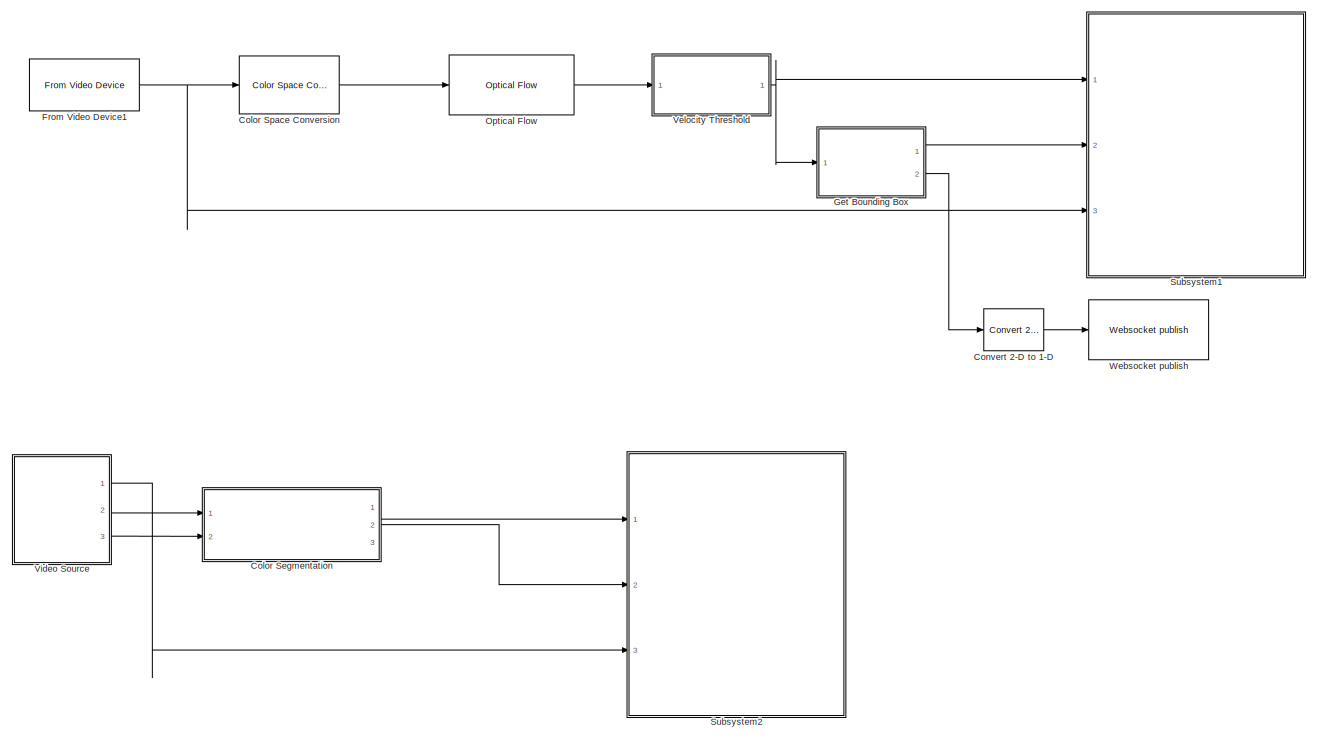
[diagram: root canvas - part 1/2, most of the canvas]
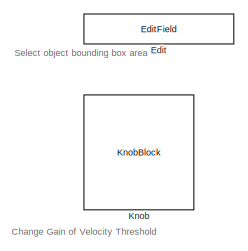
[diagram: root canvas - part 2/2, top left region]
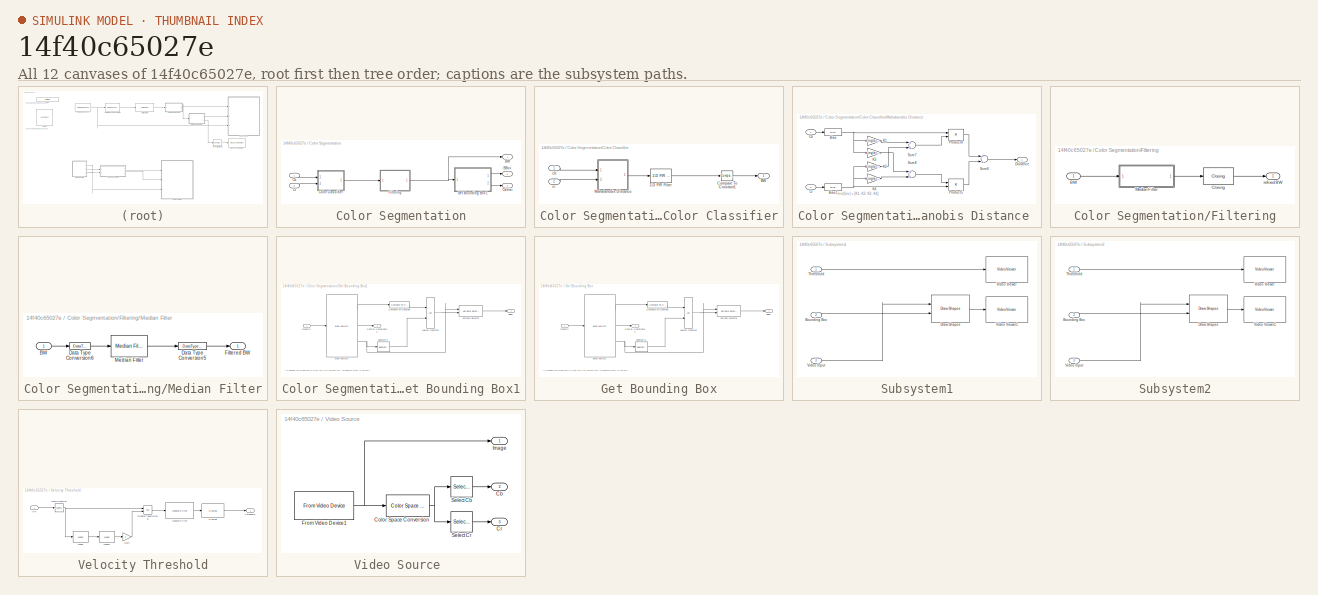
[diagram: thumbnail index - all 12 canvases of the model, root first then tree order]
MODEL slx_14f40c65027e
KIND model
CONFIG AbsTol = auto
CONFIG EnableMultiTasking = off
CONFIG FixedStep = auto
CONFIG MaxStep = auto
CONFIG MinStep = auto
CONFIG RelTol = 1e-3
CONFIG SampleTimeConstraint = Unconstrained
CONFIG Solver = VariableStepAuto
CONFIG SolverName = VariableStepAuto
CONFIG StartTime = 0.0
CONFIG StopTime = inf
BLOCK [SubSystem] Color Segmentation
  Ports = [2, 3]
  RequestExecContextInheritance = off
BLOCK [Outport] Color Segmentation/BBox
  IconDisplay = Port number
  Port = 2
BLOCK [Outport] Color Segmentation/BW
  IconDisplay = Port number
BLOCK [Inport] Color Segmentation/Cb
  IconDisplay = Port number
BLOCK [Outport] Color Segmentation/Center
  IconDisplay = Port number
  Port = 3
BLOCK [SubSystem] Color Segmentation/Color Classifier
  Ports = [2, 1]
  RequestExecContextInheritance = off
BLOCK [Reference] Color Segmentation/Color Classifier/2-D FIR Filter  REF=visionfilter/2-D FIR Filter
  Ports = [1, 1]
  SourceBlock = visionfilter/2-D FIR Filter
  SourceProductBaseCode = VP
  SourceProductName = Computer Vision Toolbox
  SourceType = 2-D FIR Filter
BLOCK [Outport] Color Segmentation/Color Classifier/BW
  IconDisplay = Port number
BLOCK [Reference] Color Segmentation/Color Classifier/Compare To Constant1  REF=simulink/Logic and Bit
Operations/Compare
To Constant
  Ports = [1, 1]
  SourceBlock = simulink/Logic and Bit\nOperations/Compare\nTo Constant
  SourceProductBaseCode = SL
  SourceProductName = Simulink
  SourceType = Compare To Constant
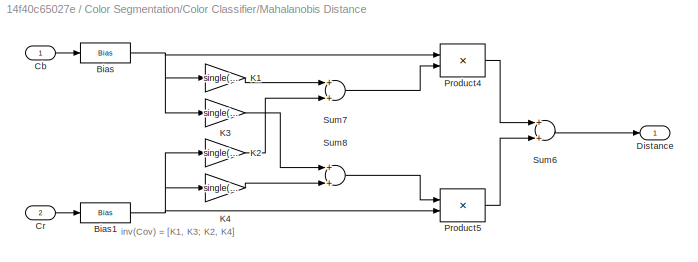
BLOCK [SubSystem] Color Segmentation/Color Classifier/Mahalanobis Distance 
  Ports = [2, 1]
  RequestExecContextInheritance = off
BLOCK [Bias] Color Segmentation/Color Classifier/Mahalanobis Distance /Bias
  Bias = -single(107.9649/255)
  SaturateOnIntegerOverflow = off
BLOCK [Bias] Color Segmentation/Color Classifier/Mahalanobis Distance /Bias1
  Bias = -single(140.8913/255)
  SaturateOnIntegerOverflow = off
BLOCK [Inport] Color Segmentation/Color Classifier/Mahalanobis Distance /Cb
  IconDisplay = Port number
BLOCK [Inport] Color Segmentation/Color Classifier/Mahalanobis Distance /Cr
  IconDisplay = Port number
  Port = 2
BLOCK [Outport] Color Segmentation/Color Classifier/Mahalanobis Distance /Distance
  IconDisplay = Port number
BLOCK [Gain] Color Segmentation/Color Classifier/Mahalanobis Distance /K1
  Gain = single(1.8328501e+03)
BLOCK [Gain] Color Segmentation/Color Classifier/Mahalanobis Distance /K2
  Gain = single(2.2506719e+03)
BLOCK [Gain] Color Segmentation/Color Classifier/Mahalanobis Distance /K3
  Gain = single(2.2506719e+03)
BLOCK [Gain] Color Segmentation/Color Classifier/Mahalanobis Distance /K4
  Gain = single(6.8658257e+03)
BLOCK [Product] Color Segmentation/Color Classifier/Mahalanobis Distance /Product4
  Ports = [2, 1]
  RndMeth = Floor
BLOCK [Product] Color Segmentation/Color Classifier/Mahalanobis Distance /Product5
  Ports = [2, 1]
  RndMeth = Floor
BLOCK [Sum] Color Segmentation/Color Classifier/Mahalanobis Distance /Sum6
  Ports = [2, 1]
BLOCK [Sum] Color Segmentation/Color Classifier/Mahalanobis Distance /Sum7
  Ports = [2, 1]
BLOCK [Sum] Color Segmentation/Color Classifier/Mahalanobis Distance /Sum8
  Ports = [2, 1]
BLOCK [Inport] Color Segmentation/Color Classifier/cb
  IconDisplay = Port number
BLOCK [Inport] Color Segmentation/Color Classifier/cr
  IconDisplay = Port number
  Port = 2
BLOCK [Inport] Color Segmentation/Cr
  IconDisplay = Port number
  Port = 2
BLOCK [SubSystem] Color Segmentation/Filtering
  Ports = [1, 1]
  RequestExecContextInheritance = off
BLOCK [Inport] Color Segmentation/Filtering/BW
  IconDisplay = Port number
BLOCK [Reference] Color Segmentation/Filtering/Closing  REF=visionmorphops/Closing
  Ports = [1, 1]
  SourceBlock = visionmorphops/Closing
  SourceProductBaseCode = VP
  SourceProductName = Computer Vision Toolbox
  SourceType = Closing
BLOCK [SubSystem] Color Segmentation/Filtering/Median Filter
  Ports = [1, 1]
  RequestExecContextInheritance = off
BLOCK [Inport] Color Segmentation/Filtering/Median Filter/BW
  IconDisplay = Port number
BLOCK [DataTypeConversion] Color Segmentation/Filtering/Median Filter/Data Type Conversion5
  OutDataTypeStr = boolean
BLOCK [DataTypeConversion] Color Segmentation/Filtering/Median Filter/Data Type Conversion6
  OutDataTypeStr = single
BLOCK [Outport] Color Segmentation/Filtering/Median Filter/Filtered BW
  IconDisplay = Port number
BLOCK [Reference] Color Segmentation/Filtering/Median Filter/Median Filter  REF=visionanalysis/Median Filter
  Ports = [1, 1]
  SourceBlock = visionanalysis/Median Filter
  SourceProductBaseCode = VP
  SourceProductName = Computer Vision Toolbox
  SourceType = Median Filter
BLOCK [Outport] Color Segmentation/Filtering/refined BW
  IconDisplay = Port number
BLOCK [SubSystem] Color Segmentation/Get Bounding Box1
  Ports = [1, 2]
  RequestExecContextInheritance = off
BLOCK [Outport] Color Segmentation/Get Bounding Box1/BBox
  IconDisplay = Port number
BLOCK [Reference] Color Segmentation/Get Bounding Box1/Blob Analysis  REF=visionstatistics/Blob Analysis
  Ports = [1, 3]
  SourceBlock = visionstatistics/Blob Analysis
  SourceProductBaseCode = VP
  SourceProductName = Computer Vision Toolbox
  SourceType = Blob Analysis
  Tag = vipblks_row_conv
BLOCK [Outport] Color Segmentation/Get Bounding Box1/Central Coordinates
  IconDisplay = Port number
  Port = 2
BLOCK [Reference] Color Segmentation/Get Bounding Box1/Compare To Constant  REF=simulink/Logic and Bit
Operations/Compare
To Constant
  Ports = [1, 1]
  SourceBlock = simulink/Logic and Bit\nOperations/Compare\nTo Constant
  SourceProductBaseCode = SL
  SourceProductName = Simulink
  SourceType = Compare To Constant
BLOCK [Inport] Color Segmentation/Get Bounding Box1/Intensity
  IconDisplay = Port number
BLOCK [Logic] Color Segmentation/Get Bounding Box1/Logical Operator
  AllPortsSameDT = off
  OutDataTypeStr = boolean
  Ports = [2, 1]
BLOCK [Reference] Color Segmentation/Get Bounding Box1/Submatrix  REF=dspmtrx3/Submatrix
  Ports = [1, 1]
  SourceBlock = dspmtrx3/Submatrix
  SourceProductBaseCode = DS
  SourceProductName = DSP System Toolbox
  SourceType = Submatrix
BLOCK [Reference] Color Segmentation/Get Bounding Box1/Variable Selector  REF=dspindex/Variable
Selector
  Ports = [2, 1]
  SourceBlock = dspindex/Variable\nSelector
  SourceProductBaseCode = DS
  SourceProductName = DSP System Toolbox
  SourceType = Variable Selector
BLOCK [Reference] Color Space Conversion  REF=visionconversions/Color Space
 Conversion
  Commented = on
  Ports = [1, 1]
  SourceBlock = visionconversions/Color Space\n Conversion
  SourceProductBaseCode = VP
  SourceProductName = Computer Vision Toolbox
  SourceType = Color Space Conversion
BLOCK [Reference] Convert 2-D to 1-D  REF=dspsigattribs/Convert 2-D to 1-D
  Commented = on
  Ports = [1, 1]
  SourceBlock = dspsigattribs/Convert 2-D to 1-D
  SourceProductBaseCode = DS
  SourceProductName = DSP System Toolbox
  SourceType = Convert 2-D to 1-D
BLOCK [EditField] Edit
  Alignment = Center
  Commented = on
  LabelPosition = Bottom
  ShowInitialText = on
BLOCK [Reference] From Video Device1  REF=imaqlib/From Video Device
  Commented = on
  Ports = [0, 1]
  SourceBlock = imaqlib/From Video Device
  SourceProductBaseCode = IA
  SourceProductName = Image Acquisition Toolbox
  SourceType = From Video Device
  UserDataPersistent = on
BLOCK [SubSystem] Get Bounding Box
  Commented = on
  Ports = [1, 2]
  RequestExecContextInheritance = off
BLOCK [Outport] Get Bounding Box/BBox
  IconDisplay = Port number
BLOCK [Reference] Get Bounding Box/Blob Analysis  REF=visionstatistics/Blob Analysis
  Ports = [1, 3]
  SourceBlock = visionstatistics/Blob Analysis
  SourceProductBaseCode = VP
  SourceProductName = Computer Vision Toolbox
  SourceType = Blob Analysis
  Tag = vipblks_row_conv
BLOCK [Outport] Get Bounding Box/Central Coordinates
  IconDisplay = Port number
  Port = 2
BLOCK [Reference] Get Bounding Box/Compare To Constant  REF=simulink/Logic and Bit
Operations/Compare
To Constant
  Ports = [1, 1]
  SourceBlock = simulink/Logic and Bit\nOperations/Compare\nTo Constant
  SourceProductBaseCode = SL
  SourceProductName = Simulink
  SourceType = Compare To Constant
BLOCK [Inport] Get Bounding Box/Intensity
  IconDisplay = Port number
BLOCK [Logic] Get Bounding Box/Logical Operator
  AllPortsSameDT = off
  OutDataTypeStr = boolean
  Ports = [2, 1]
BLOCK [Reference] Get Bounding Box/Submatrix  REF=dspmtrx3/Submatrix
  Ports = [1, 1]
  SourceBlock = dspmtrx3/Submatrix
  SourceProductBaseCode = DS
  SourceProductName = DSP System Toolbox
  SourceType = Submatrix
BLOCK [Reference] Get Bounding Box/Variable Selector  REF=dspindex/Variable
Selector
  Ports = [2, 1]
  SourceBlock = dspindex/Variable\nSelector
  SourceProductBaseCode = DS
  SourceProductName = DSP System Toolbox
  SourceType = Variable Selector
BLOCK [KnobBlock] Knob
  Commented = on
  ScaleMax = 10
  ScaleMin = 1
BLOCK [Reference] Optical Flow  REF=visionanalysis/Optical Flow
  Commented = on
  Ports = [1, 1]
  SourceBlock = visionanalysis/Optical Flow
  SourceProductBaseCode = VP
  SourceProductName = Computer Vision Toolbox
  SourceType = Optical Flow
BLOCK [SubSystem] Subsystem1
  Commented = on
  Ports = [3]
  RequestExecContextInheritance = off
BLOCK [Inport] Subsystem1/Bounding Box
  IconDisplay = Port number
  Port = 2
BLOCK [Reference] Subsystem1/Draw Shapes  REF=visiontextngfix/Draw Shapes
  Ports = [2, 1]
  SourceBlock = visiontextngfix/Draw Shapes
  SourceProductBaseCode = VP
  SourceProductName = Computer Vision Toolbox
  SourceType = Draw Shapes
BLOCK [Inport] Subsystem1/Threshold
  IconDisplay = Port number
BLOCK [Inport] Subsystem1/Video Input
  IconDisplay = Port number
  Port = 3
BLOCK [VideoViewer] Subsystem1/Video Viewer
  FigPos = [962 1037 958 409]
  Ports = [1]
  ScopeSpecificationString = vipscopes.VideoViewerScopeCfg('CurrentConfiguration', extmgr.ConfigurationSet(extmgr.Configuration('Core','General UI',true),extmgr.Configuration('Core','Source UI',true),extmgr.Configuration('Sources','WiredSimulink',true),extmgr.Configuration('Visuals','Video',true),extmgr.Configuration('Tools','Image Navigation Tools',true),extmgr.Configuration('Tools','Image Tool',true),extmgr.Configuration('T...<+74ch>
BLOCK [VideoViewer] Subsystem1/Video Viewer1
  FigPos = [2 517 958 409]
  Ports = [1]
  ScopeSpecificationString = vipscopes.VideoViewerScopeCfg('CurrentConfiguration', extmgr.ConfigurationSet(extmgr.Configuration('Core','General UI',true),extmgr.Configuration('Core','Source UI',true),extmgr.Configuration('Sources','WiredSimulink',true),extmgr.Configuration('Visuals','Video',true),extmgr.Configuration('Tools','Image Navigation Tools',true),extmgr.Configuration('Tools','Image Tool',true),extmgr.Configuration('T...<+73ch>
BLOCK [SubSystem] Subsystem2
  Ports = [3]
  RequestExecContextInheritance = off
BLOCK [Inport] Subsystem2/Bounding Box
  IconDisplay = Port number
  Port = 2
BLOCK [Reference] Subsystem2/Draw Shapes  REF=visiontextngfix/Draw Shapes
  Ports = [2, 1]
  SourceBlock = visiontextngfix/Draw Shapes
  SourceProductBaseCode = VP
  SourceProductName = Computer Vision Toolbox
  SourceType = Draw Shapes
BLOCK [Inport] Subsystem2/Threshold
  IconDisplay = Port number
BLOCK [Inport] Subsystem2/Video Input
  IconDisplay = Port number
  Port = 3
BLOCK [VideoViewer] Subsystem2/Video Viewer
  FigPos = [911 981 963 699]
  Ports = [1]
  ScopeSpecificationString = vipscopes.VideoViewerScopeCfg('CurrentConfiguration', extmgr.ConfigurationSet(extmgr.Configuration('Core','General UI',true),extmgr.Configuration('Core','Source UI',true),extmgr.Configuration('Sources','WiredSimulink',true),extmgr.Configuration('Visuals','Video',true),extmgr.Configuration('Tools','Image Navigation Tools',true),extmgr.Configuration('Tools','Image Tool',true),extmgr.Configuration('T...<+74ch>
BLOCK [VideoViewer] Subsystem2/Video Viewer1
  FigPos = [2 936 949 828]
  Ports = [1]
  ScopeSpecificationString = vipscopes.VideoViewerScopeCfg('CurrentConfiguration', extmgr.ConfigurationSet(extmgr.Configuration('Core','General UI',true),extmgr.Configuration('Core','Source UI',true),extmgr.Configuration('Sources','WiredSimulink',true),extmgr.Configuration('Visuals','Video',true),extmgr.Configuration('Tools','Image Navigation Tools',true),extmgr.Configuration('Tools','Image Tool',true),extmgr.Configuration('T...<+73ch>
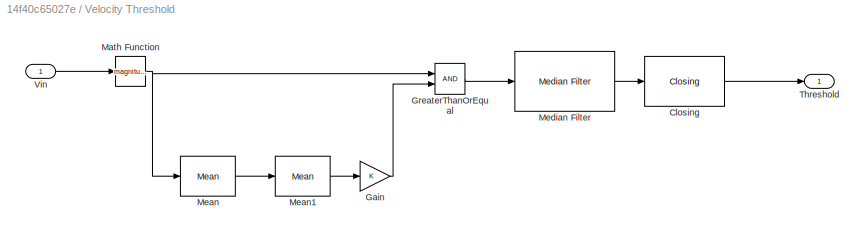
BLOCK [SubSystem] Velocity Threshold
  Commented = on
  Ports = [1, 1]
  RequestExecContextInheritance = off
BLOCK [Reference] Velocity Threshold/Closing  REF=visionmorphops/Closing
  Ports = [1, 1]
  SourceBlock = visionmorphops/Closing
  SourceProductBaseCode = VP
  SourceProductName = Computer Vision Toolbox
  SourceType = Closing
BLOCK [Gain] Velocity Threshold/Gain
  OutDataTypeStr = Inherit: Inherit via internal rule
  ParamDataTypeStr = Inherit: Inherit via internal rule
  SaturateOnIntegerOverflow = off
BLOCK [RelationalOperator] Velocity Threshold/GreaterThanOrEqual
  InputSameDT = off
  OutDataTypeStr = boolean
  Ports = [2, 1]
  RndMeth = Simplest
BLOCK [Math] Velocity Threshold/Math Function
  Operator = magnitude^2
  Ports = [1, 1]
  SignedPower = off
BLOCK [Reference] Velocity Threshold/Mean  REF=dspstat3/Mean
  Ports = [1, 1]
  SourceBlock = dspstat3/Mean
  SourceProductBaseCode = DS
  SourceProductName = DSP System Toolbox
  SourceType = Mean
  UserDataPersistent = on
BLOCK [Reference] Velocity Threshold/Mean1  REF=dspstat3/Mean
  Ports = [1, 1]
  SourceBlock = dspstat3/Mean
  SourceProductBaseCode = DS
  SourceProductName = DSP System Toolbox
  SourceType = Mean
  UserDataPersistent = on
BLOCK [Reference] Velocity Threshold/Median Filter  REF=visionanalysis/Median Filter
  Ports = [1, 1]
  SourceBlock = visionanalysis/Median Filter
  SourceProductBaseCode = VP
  SourceProductName = Computer Vision Toolbox
  SourceType = Median Filter
BLOCK [Outport] Velocity Threshold/Threshold
  IconDisplay = Port number
BLOCK [Inport] Velocity Threshold/Vin
  IconDisplay = Port number
BLOCK [SubSystem] Video Source 
  Ports = [0, 3]
  RequestExecContextInheritance = off
BLOCK [Outport] Video Source /Cb
  IconDisplay = Port number
  Port = 2
BLOCK [Reference] Video Source /Color Space Conversion  REF=visionconversions/Color Space
 Conversion
  Ports = [1, 1]
  SourceBlock = visionconversions/Color Space\n Conversion
  SourceProductBaseCode = VP
  SourceProductName = Computer Vision Toolbox
  SourceType = Color Space Conversion
BLOCK [Outport] Video Source /Cr
  IconDisplay = Port number
  Port = 3
BLOCK [Reference] Video Source /From Video Device1  REF=imaqlib/From Video Device
  Ports = [0, 1]
  SourceBlock = imaqlib/From Video Device
  SourceProductBaseCode = IA
  SourceProductName = Image Acquisition Toolbox
  SourceType = From Video Device
  UserDataPersistent = on
BLOCK [Outport] Video Source /Image
  IconDisplay = Port number
BLOCK [Selector] Video Source /Select Cb
  IndexOptions = Select all,Select all,Index vector (dialog)
  Indices = [1 3],1,2
  InputPortWidth = 3
  NumberOfDimensions = 3
  OutputSizes = 1,1,1
  Ports = [1, 1]
BLOCK [Selector] Video Source /Select Cr
  IndexOptions = Select all,Select all,Index vector (dialog)
  Indices = [1 3],1,3
  InputPortWidth = 3
  NumberOfDimensions = 3
  OutputSizes = 1,1,1
  Ports = [1, 1]
BLOCK [Reference] Websocket publish  REF=raspberrypilib/Websocket publish
  Commented = on
  Ports = [1]
  SourceBlock = raspberrypilib/Websocket publish
  SourceProductBaseCode = RASPPI
  SourceProductName = Simulink Support Package for Raspberry Pi Hardware
  SourceType = codertarget.raspi.internal.webPublish
ANNOTATION (root): Change Gain of Velocity Threshold
ANNOTATION (root): Select object bounding box area
ANNOTATION Color Segmentation/Color Classifier/Mahalanobis Distance : inv(Cov) = [K1, K3; K2, K4]
ANNOTATION Color Segmentation/Get Bounding Box1: //Changed the SUBMATRIX to be the first column only (Research what is correct) ---> Default is all columns (50x4)//
ANNOTATION Get Bounding Box: //Changed the SUBMATRIX to be the first column only (Research what is correct) ---> Default is all columns (50x4)//
LINE Color Segmentation/Cb:1 -> Color Segmentation/Color Classifier:1
LINE Color Segmentation/Color Classifier/2-D FIR Filter:1 -> Color Segmentation/Color Classifier/Compare To Constant1:1
LINE Color Segmentation/Color Classifier/Compare To Constant1:1 -> Color Segmentation/Color Classifier/BW:1
NET Color Segmentation/Color Classifier/Mahalanobis Distance /Bias1:1 -> Color Segmentation/Color Classifier/Mahalanobis Distance /K2:1, Color Segmentation/Color Classifier/Mahalanobis Distance /K4:1, Color Segmentation/Color Classifier/Mahalanobis Distance /Product5:2
NET Color Segmentation/Color Classifier/Mahalanobis Distance /Bias:1 -> Color Segmentation/Color Classifier/Mahalanobis Distance /K1:1, Color Segmentation/Color Classifier/Mahalanobis Distance /K3:1, Color Segmentation/Color Classifier/Mahalanobis Distance /Product4:1
LINE Color Segmentation/Color Classifier/Mahalanobis Distance /Cb:1 -> Color Segmentation/Color Classifier/Mahalanobis Distance /Bias:1
LINE Color Segmentation/Color Classifier/Mahalanobis Distance /Cr:1 -> Color Segmentation/Color Classifier/Mahalanobis Distance /Bias1:1
LINE Color Segmentation/Color Classifier/Mahalanobis Distance /K1:1 -> Color Segmentation/Color Classifier/Mahalanobis Distance /Sum7:1
LINE Color Segmentation/Color Classifier/Mahalanobis Distance /K2:1 -> Color Segmentation/Color Classifier/Mahalanobis Distance /Sum7:2
LINE Color Segmentation/Color Classifier/Mahalanobis Distance /K3:1 -> Color Segmentation/Color Classifier/Mahalanobis Distance /Sum8:1
LINE Color Segmentation/Color Classifier/Mahalanobis Distance /K4:1 -> Color Segmentation/Color Classifier/Mahalanobis Distance /Sum8:2
LINE Color Segmentation/Color Classifier/Mahalanobis Distance /Product4:1 -> Color Segmentation/Color Classifier/Mahalanobis Distance /Sum6:1
LINE Color Segmentation/Color Classifier/Mahalanobis Distance /Product5:1 -> Color Segmentation/Color Classifier/Mahalanobis Distance /Sum6:2
LINE Color Segmentation/Color Classifier/Mahalanobis Distance /Sum6:1 -> Color Segmentation/Color Classifier/Mahalanobis Distance /Distance:1
LINE Color Segmentation/Color Classifier/Mahalanobis Distance /Sum7:1 -> Color Segmentation/Color Classifier/Mahalanobis Distance /Product4:2
LINE Color Segmentation/Color Classifier/Mahalanobis Distance /Sum8:1 -> Color Segmentation/Color Classifier/Mahalanobis Distance /Product5:1
LINE Color Segmentation/Color Classifier/Mahalanobis Distance :1 -> Color Segmentation/Color Classifier/2-D FIR Filter:1
LINE Color Segmentation/Color Classifier/cb:1 -> Color Segmentation/Color Classifier/Mahalanobis Distance :1
LINE Color Segmentation/Color Classifier/cr:1 -> Color Segmentation/Color Classifier/Mahalanobis Distance :2
LINE Color Segmentation/Color Classifier:1 -> Color Segmentation/Filtering:1
LINE Color Segmentation/Cr:1 -> Color Segmentation/Color Classifier:2
LINE Color Segmentation/Filtering/BW:1 -> Color Segmentation/Filtering/Median Filter:1
LINE Color Segmentation/Filtering/Closing:1 -> Color Segmentation/Filtering/refined BW:1
LINE Color Segmentation/Filtering/Median Filter/BW:1 -> Color Segmentation/Filtering/Median Filter/Data Type Conversion6:1
LINE Color Segmentation/Filtering/Median Filter/Data Type Conversion5:1 -> Color Segmentation/Filtering/Median Filter/Filtered BW:1
LINE Color Segmentation/Filtering/Median Filter/Data Type Conversion6:1 -> Color Segmentation/Filtering/Median Filter/Median Filter:1
LINE Color Segmentation/Filtering/Median Filter/Median Filter:1 -> Color Segmentation/Filtering/Median Filter/Data Type Conversion5:1
LINE Color Segmentation/Filtering/Median Filter:1 -> Color Segmentation/Filtering/Closing:1
NET Color Segmentation/Filtering:1 -> Color Segmentation/BW:1, Color Segmentation/Get Bounding Box1:1
LINE Color Segmentation/Get Bounding Box1/Blob Analysis:1 -> Color Segmentation/Get Bounding Box1/Compare To Constant:1
LINE Color Segmentation/Get Bounding Box1/Blob Analysis:2 -> Color Segmentation/Get Bounding Box1/Central Coordinates:1
NET Color Segmentation/Get Bounding Box1/Blob Analysis:3 -> Color Segmentation/Get Bounding Box1/Submatrix:1, Color Segmentation/Get Bounding Box1/Variable Selector:1
LINE Color Segmentation/Get Bounding Box1/Compare To Constant:1 -> Color Segmentation/Get Bounding Box1/Logical Operator:1
LINE Color Segmentation/Get Bounding Box1/Intensity:1 -> Color Segmentation/Get Bounding Box1/Blob Analysis:1
LINE Color Segmentation/Get Bounding Box1/Logical Operator:1 -> Color Segmentation/Get Bounding Box1/Variable Selector:2
LINE Color Segmentation/Get Bounding Box1/Submatrix:1 -> Color Segmentation/Get Bounding Box1/Logical Operator:2
LINE Color Segmentation/Get Bounding Box1/Variable Selector:1 -> Color Segmentation/Get Bounding Box1/BBox:1
LINE Color Segmentation/Get Bounding Box1:1 -> Color Segmentation/BBox:1
LINE Color Segmentation/Get Bounding Box1:2 -> Color Segmentation/Center:1
LINE Color Segmentation:1 -> Subsystem2:1
LINE Color Segmentation:2 -> Subsystem2:2
LINE Color Space Conversion:1 -> Optical Flow:1
LINE Convert 2-D to 1-D:1 -> Websocket publish:1
NET From Video Device1:1 -> Color Space Conversion:1, Subsystem1:3
LINE Get Bounding Box/Blob Analysis:1 -> Get Bounding Box/Compare To Constant:1
LINE Get Bounding Box/Blob Analysis:2 -> Get Bounding Box/Central Coordinates:1
NET Get Bounding Box/Blob Analysis:3 -> Get Bounding Box/Submatrix:1, Get Bounding Box/Variable Selector:1
LINE Get Bounding Box/Compare To Constant:1 -> Get Bounding Box/Logical Operator:1
LINE Get Bounding Box/Intensity:1 -> Get Bounding Box/Blob Analysis:1
LINE Get Bounding Box/Logical Operator:1 -> Get Bounding Box/Variable Selector:2
LINE Get Bounding Box/Submatrix:1 -> Get Bounding Box/Logical Operator:2
LINE Get Bounding Box/Variable Selector:1 -> Get Bounding Box/BBox:1
LINE Get Bounding Box:1 -> Subsystem1:2
LINE Get Bounding Box:2 -> Convert 2-D to 1-D:1
LINE Optical Flow:1 -> Velocity Threshold:1
LINE Subsystem1/Bounding Box:1 -> Subsystem1/Draw Shapes:2
LINE Subsystem1/Draw Shapes:1 -> Subsystem1/Video Viewer1:1
LINE Subsystem1/Threshold:1 -> Subsystem1/Video Viewer:1
LINE Subsystem1/Video Input:1 -> Subsystem1/Draw Shapes:1
LINE Subsystem2/Bounding Box:1 -> Subsystem2/Draw Shapes:2
LINE Subsystem2/Draw Shapes:1 -> Subsystem2/Video Viewer1:1
LINE Subsystem2/Threshold:1 -> Subsystem2/Video Viewer:1
LINE Subsystem2/Video Input:1 -> Subsystem2/Draw Shapes:1
LINE Velocity Threshold/Closing:1 -> Velocity Threshold/Threshold:1
LINE Velocity Threshold/Gain:1 -> Velocity Threshold/GreaterThanOrEqual:2
LINE Velocity Threshold/GreaterThanOrEqual:1 -> Velocity Threshold/Median Filter:1
NET Velocity Threshold/Math Function:1 -> Velocity Threshold/GreaterThanOrEqual:1, Velocity Threshold/Mean:1
LINE Velocity Threshold/Mean1:1 -> Velocity Threshold/Gain:1
LINE Velocity Threshold/Mean:1 -> Velocity Threshold/Mean1:1
LINE Velocity Threshold/Median Filter:1 -> Velocity Threshold/Closing:1
LINE Velocity Threshold/Vin:1 -> Velocity Threshold/Math Function:1
NET Velocity Threshold:1 -> Get Bounding Box:1, Subsystem1:1
NET Video Source /Color Space Conversion:1 -> Video Source /Select Cb:1, Video Source /Select Cr:1
NET Video Source /From Video Device1:1 -> Video Source /Color Space Conversion:1, Video Source /Image:1
LINE Video Source /Select Cb:1 -> Video Source /Cb:1
LINE Video Source /Select Cr:1 -> Video Source /Cr:1
LINE Video Source :1 -> Subsystem2:3
LINE Video Source :2 -> Color Segmentation:1
LINE Video Source :3 -> Color Segmentation:2
note: NET lines group one-source signal fan-out (src -> all destinations, sorted); 1:1 wires keep LINE
